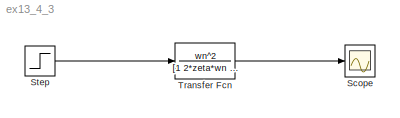
MODEL ex13_4_3
KIND model
BLOCK [Scope] Scope
  DataFormat = StructureWithTime
  Floating = off
  NumInputPorts = 1
  Ports = [1]
  SID = 3
  SampleTime = 0
  ShowLegends = off
BLOCK [Step] Step
  SID = 1
  SampleTime = 0
BLOCK [TransferFcn] Transfer Fcn
  Denominator = [1 2*zeta*wn wn^2]
  Numerator = wn^2
  SID = 2
LINE Step:1 -> Transfer Fcn:1
LINE Transfer Fcn:1 -> Scope:1
